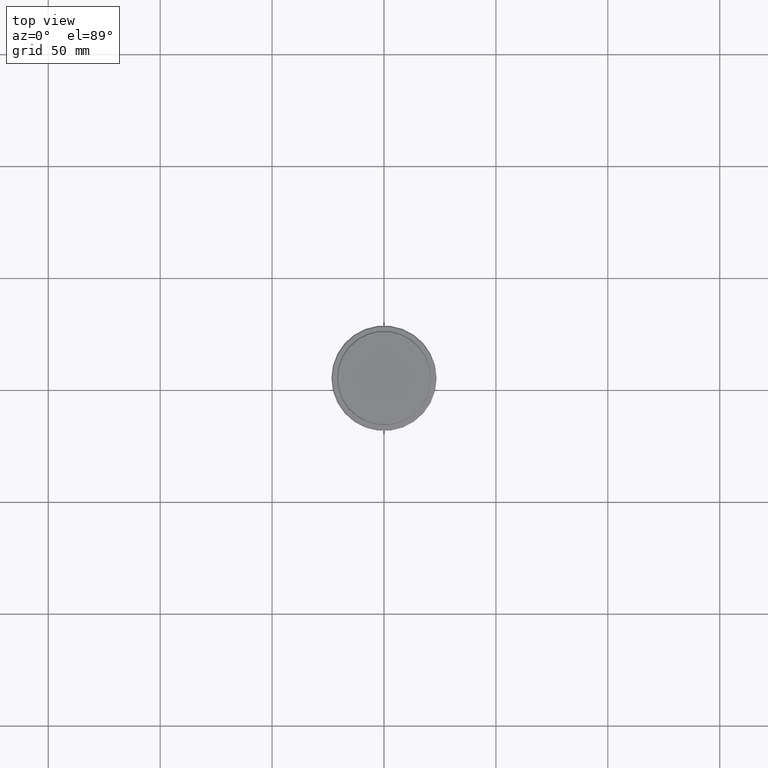
[diagram: clean part render]
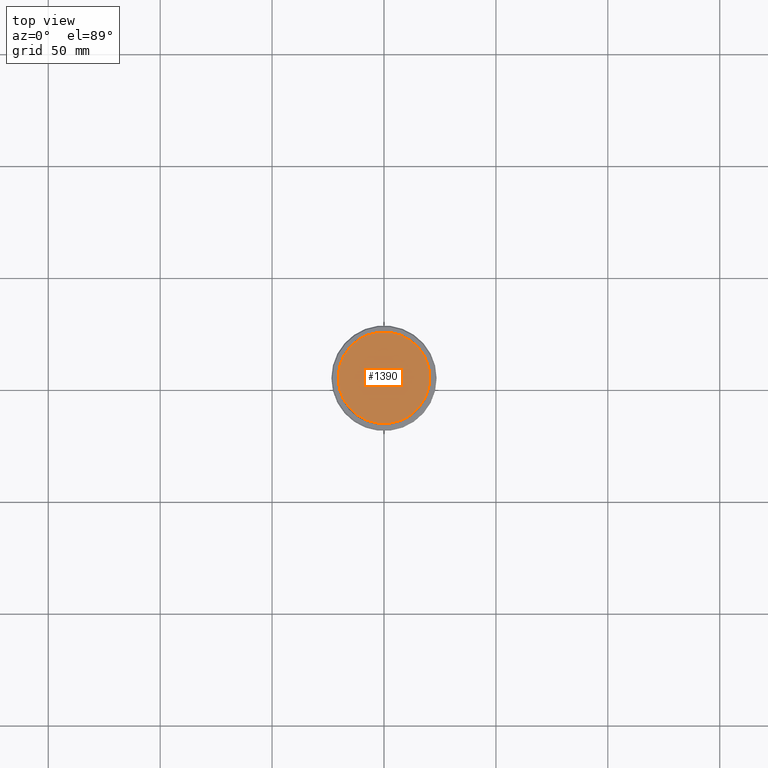
[diagram: same view with one face highlighted and labeled with its STEP entity id]
A machine part, top view. The second image highlights one B-rep face of the part: STEP entity #1390.
In plain terms, the highlighted planar face has unit normal (0, -0, 1).
Its self-contained STEP definition (entity closure, byte-faithful):
#174 = AXIS2_PLACEMENT_3D ( 'NONE', #922, #833, #1060 ) ;
#273 = VERTEX_POINT ( 'NONE', #567 ) ;
#283 = FACE_OUTER_BOUND ( 'NONE', #908, .T. ) ;
#381 = EDGE_CURVE ( 'NONE', #273, #1394, #909, .T. ) ;
#414 = DIRECTION ( 'NONE',  ( 1.000000000000000000, 0.000000000000000000, 0.000000000000000000 ) ) ;
#567 = CARTESIAN_POINT ( 'NONE',  ( 20.50000000000004619, 2.541142108230760635E-15, 0.000000000000000000 ) ) ;
#606 = AXIS2_PLACEMENT_3D ( 'NONE', #1351, #1142, #944 ) ;
#726 = CARTESIAN_POINT ( 'NONE',  ( -20.50000000000004619, 0.000000000000000000, 0.000000000000000000 ) ) ;
#794 = ORIENTED_EDGE ( 'NONE', *, *, #381, .T. ) ;
#833 = DIRECTION ( 'NONE',  ( 0.000000000000000000, -0.000000000000000000, 1.000000000000000000 ) ) ;
#908 = EDGE_LOOP ( 'NONE', ( #1113, #794 ) ) ;
#909 = CIRCLE ( 'NONE', #606, 20.50000000000004619 ) ;
#922 = CARTESIAN_POINT ( 'NONE',  ( 0.000000000000000000, 0.000000000000000000, 0.000000000000000000 ) ) ;
#944 = DIRECTION ( 'NONE',  ( 1.000000000000000000, 0.000000000000000000, 0.000000000000000000 ) ) ;
#1060 = DIRECTION ( 'NONE',  ( 1.000000000000000000, 0.000000000000000000, 0.000000000000000000 ) ) ;
#1068 = EDGE_CURVE ( 'NONE', #1394, #273, #1338, .T. ) ;
#1113 = ORIENTED_EDGE ( 'NONE', *, *, #1068, .T. ) ;
#1142 = DIRECTION ( 'NONE',  ( -0.000000000000000000, -0.000000000000000000, 1.000000000000000000 ) ) ;
#1258 = PLANE ( 'NONE',  #174 ) ;
#1338 = CIRCLE ( 'NONE', #1407, 20.50000000000004619 ) ;
#1351 = CARTESIAN_POINT ( 'NONE',  ( 0.000000000000000000, 0.000000000000000000, 0.000000000000000000 ) ) ;
#1390 = ADVANCED_FACE ( 'NONE', ( #283 ), #1258, .T. ) ;
#1394 = VERTEX_POINT ( 'NONE', #726 ) ;
#1398 = DIRECTION ( 'NONE',  ( -0.000000000000000000, -0.000000000000000000, 1.000000000000000000 ) ) ;
#1403 = CARTESIAN_POINT ( 'NONE',  ( 0.000000000000000000, 0.000000000000000000, 0.000000000000000000 ) ) ;
#1407 = AXIS2_PLACEMENT_3D ( 'NONE', #1403, #1398, #414 ) ;